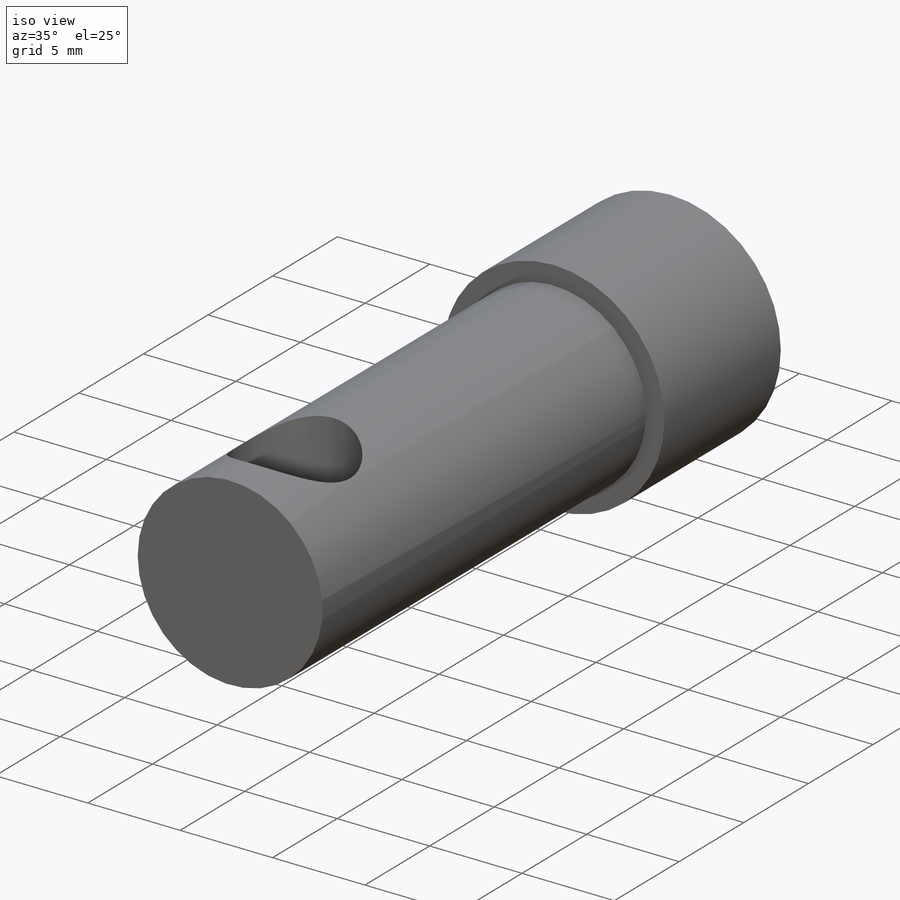
[diagram: iso view]
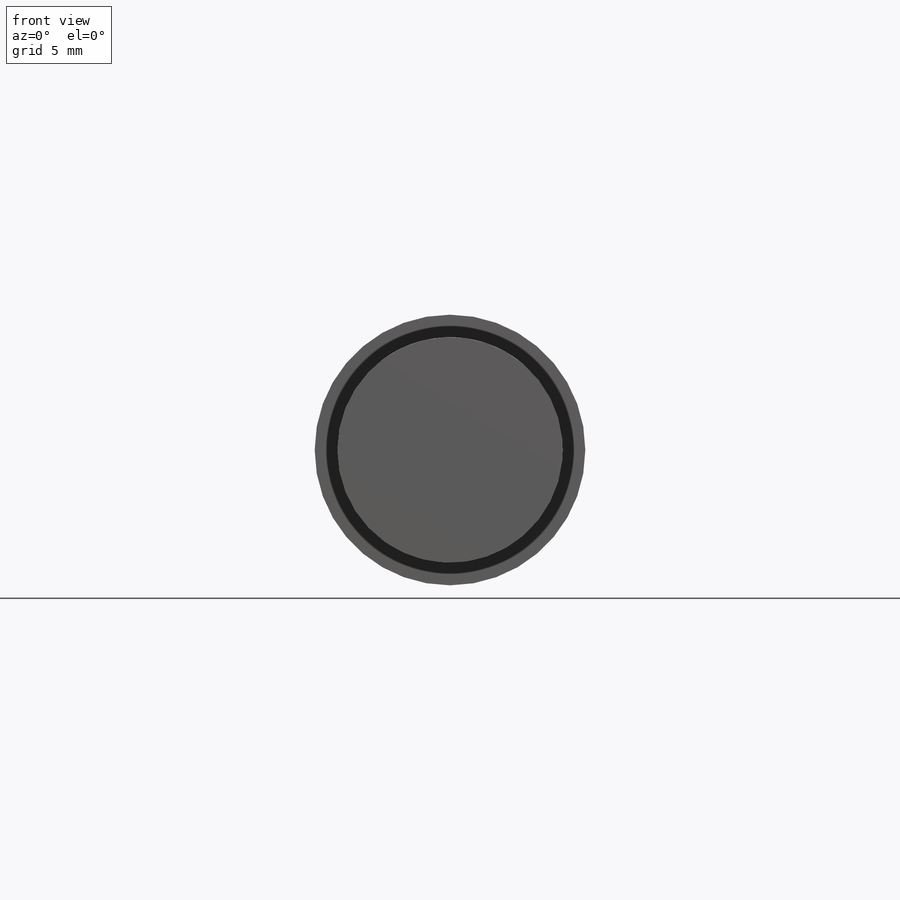
[diagram: front view]
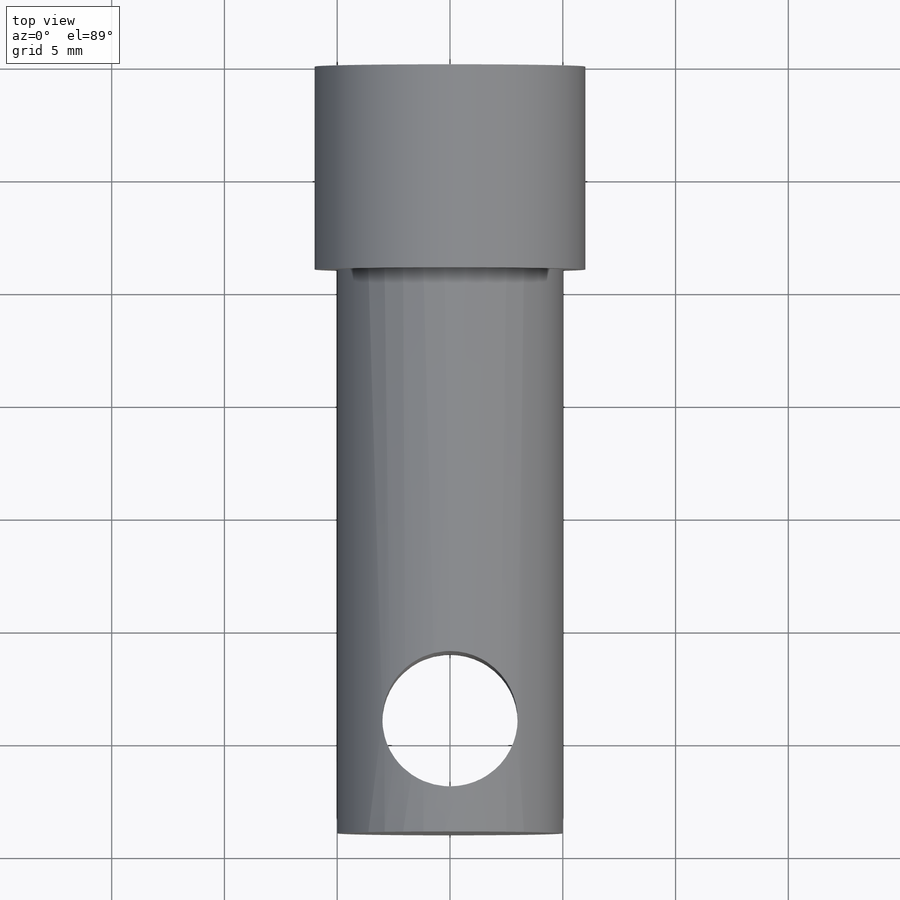
[diagram: top view]
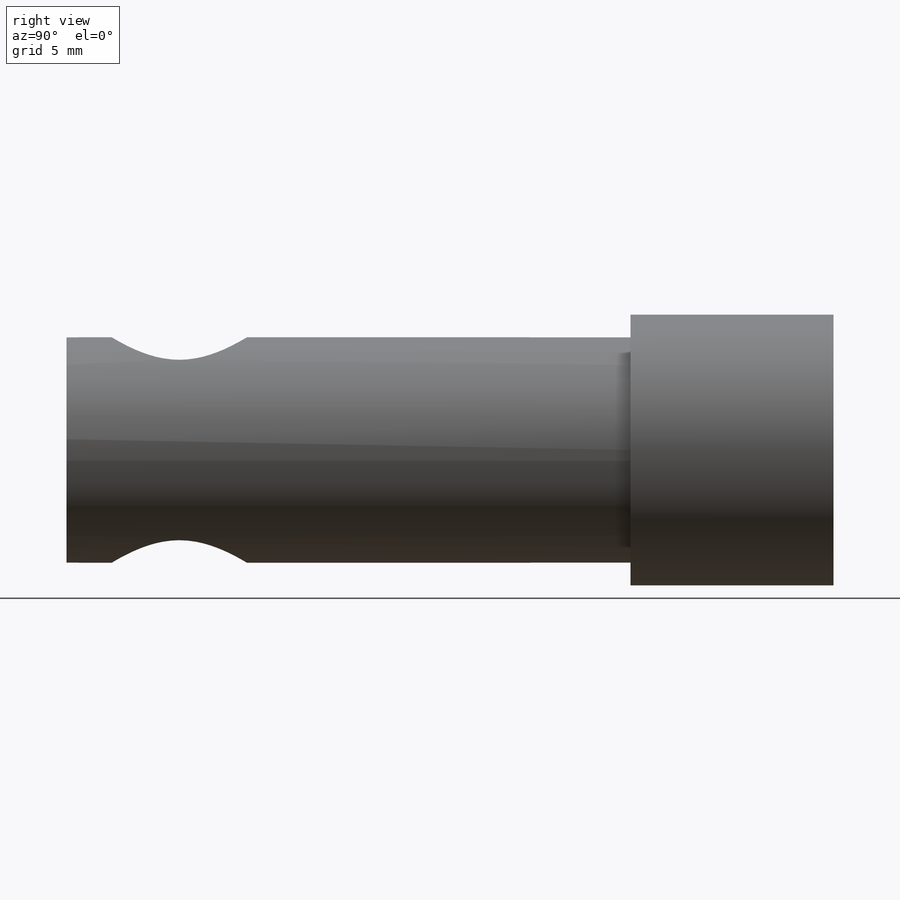
[diagram: right view]
SOLIDWORKS PART (.sldprt)
format: sldprt  version: not decoded by parser v0  size: 227,328 bytes
history: native  units: mm
features: plane x4, sketch x4, extrude x2, cut_extrude x2, material x1 (+10 scaffold rows collapsed)
feature tree (23):
  scaffold x10  (default folders/planes/origin — collapsed)
  material  "材质 <未指定>"
  plane  "前视基准面"
  plane  "上视基准面"
  plane  "右视基准面"
  sketch  "草图1"  dims[D1=10.0mm]
  extrude  "凸台-拉伸1"  Depth=34mm
  sketch  "草图4"  dims[D1=12.0mm]
  extrude  "凸台-拉伸2"  Depth=9mm
  sketch  "草图2"  dims[D3=0.6mm D1=6.33mm D2=6.33mm]
  cut_extrude  "切除-拉伸1"  Depth=8mm
  plane  "基准面1"
  sketch  "草图3"  dims[D2=6.0mm D1=5.0mm]
  cut_extrude  "切除-拉伸2"  [1 undecoded]
decode coverage: 7 of 8 modeling features carry decoded parameters
note: 1 parameter value undecoded
note: suppression state not decoded; provenance and decode notes live in map.json
